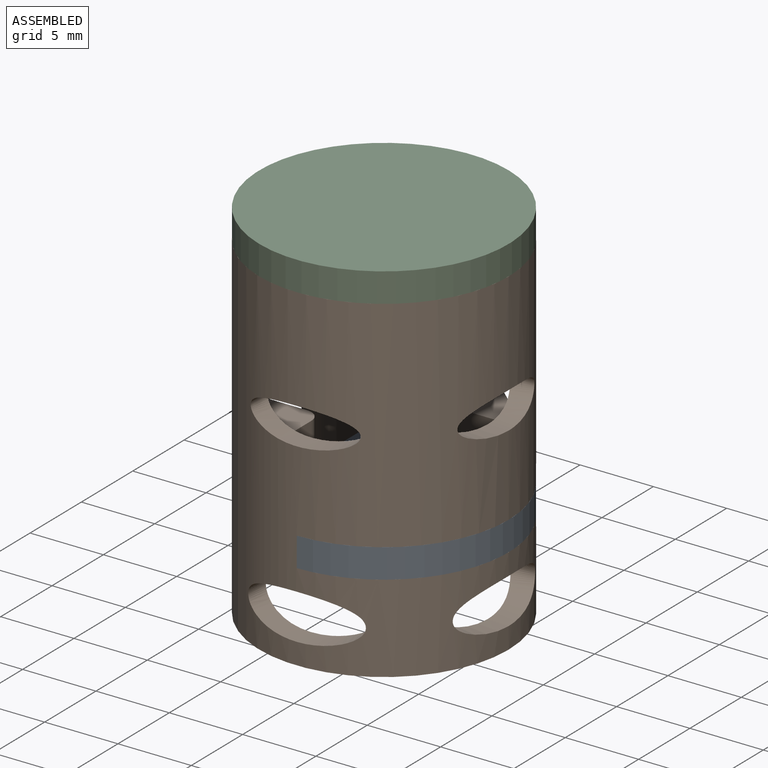
[diagram: assembled view]
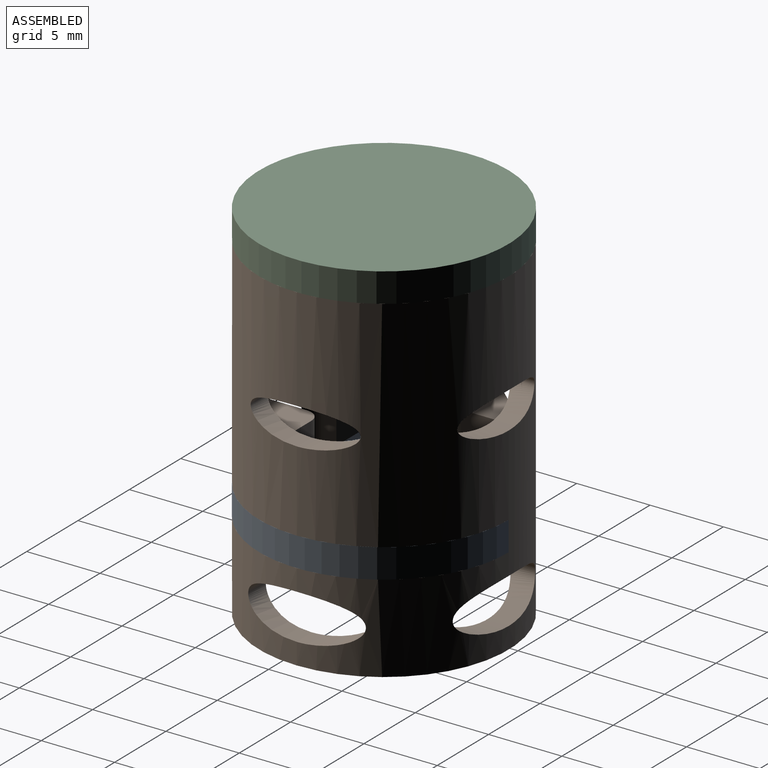
[diagram: assembled view, second angle]
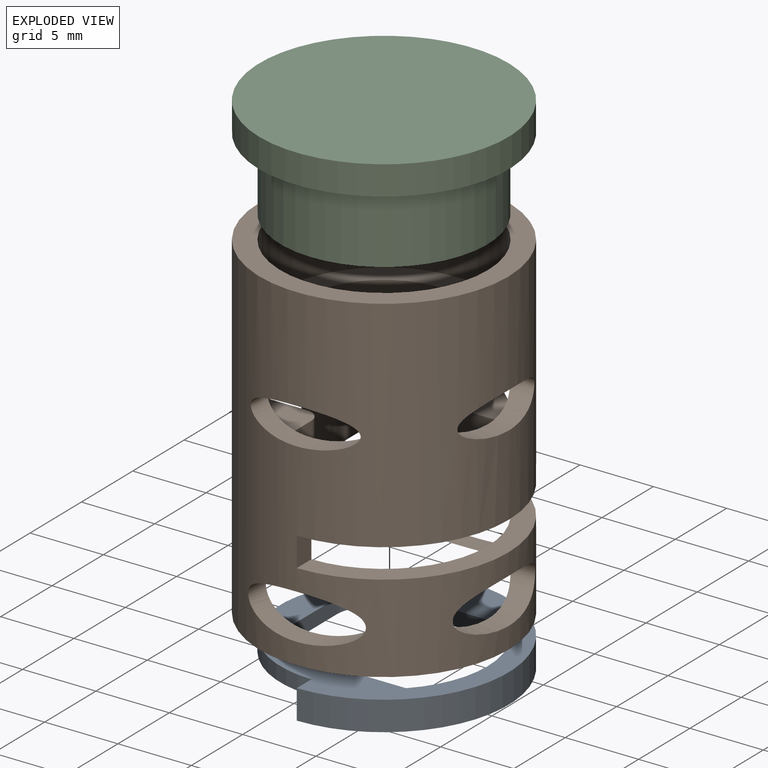
[diagram: exploded view]
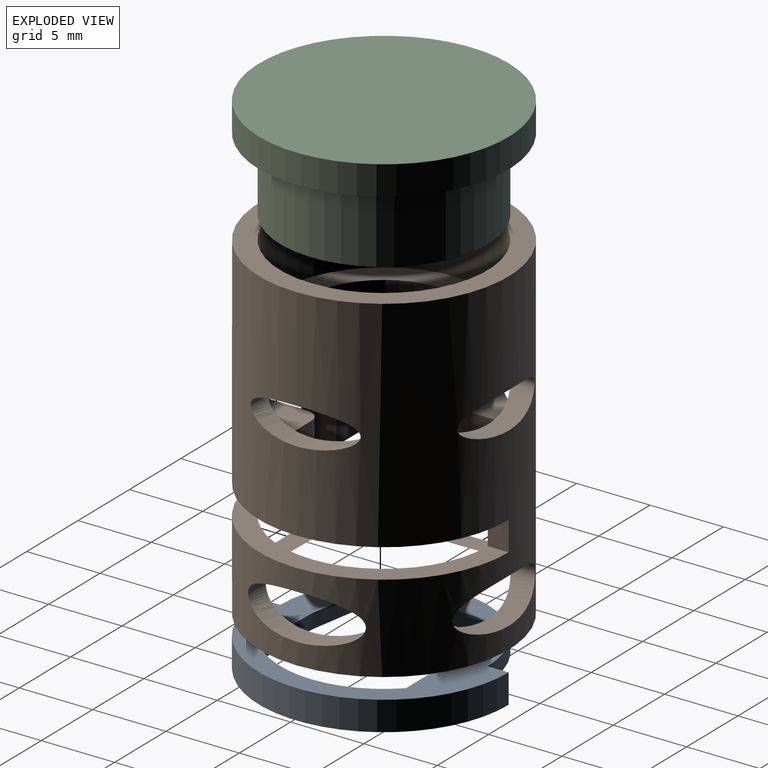
[diagram: exploded view, second angle]
ASSEMBLY  parts=3 mates=6
PART A: 17 faces, bbox 15.6x17x2 mm
  f0: plane 14.14x12.07mm, normal (0,0,1), area 47.8mm2, adj f1,f2,f3,f4,f5,f6,f10,f13
  f1: plane 5.03x1mm, normal (1,0,0), area 5mm2, adj f0,f11,f15,f16
  f2: extruded ~2.95x1mm, area 3mm2, adj f0,f11,f13,f15
  f3: plane 4.6x1mm, normal (0,-1,0), area 4.6mm2, adj f0,f4,f11,f13
  f4: cylinder r=7.07mm len=14.14mm, axis (0,0,-1), area 33.3mm2, adj f0,f3,f5,f7,f9,f11,f12
  f5: plane 4.67x1mm, normal (0,1,0), area 4.7mm2, adj f0,f4,f11,f14
  f6: cylinder r=7.07mm len=14.14mm, axis (0,0,-1), area 22.2mm2, adj f0,f7,f9,f11
  f7: plane 2x1.43mm, normal (-1,0,0), area 2.9mm2, adj f4,f6,f8,f11,f12
  f8: cylinder r=8.5mm len=17mm, axis (0,0,-1), area 53.4mm2, adj f7,f9,f11,f12
  f9: plane 2x1.43mm, normal (-1,0,0), area 2.9mm2, adj f4,f6,f8,f11,f12
  f10: extruded ~2.96x1mm, area 3mm2, adj f0,f11,f14,f16
  f11: plane 17x15.57mm, normal (0,0,-1), area 82.8mm2, adj f1,f2,f3,f4,f5,f6,f7,f8
  f12: plane 17x8.5mm, normal (0,0,1), area 35mm2, adj f4,f7,f8,f9
  f13: cylinder r=5mm len=1mm, axis (0,0,-1), area 0.8mm2, adj f0,f2,f3,f11
  f14: cylinder r=5mm len=1mm, axis (0,0,-1), area 0.7mm2, adj f0,f5,f10,f11
  f15: cylinder r=2mm len=1.97mm, axis (0,0,-1), area 2.8mm2, adj f0,f1,f2,f11
  f16: cylinder r=2mm len=1.98mm, axis (0,0,-1), area 2.9mm2, adj f0,f1,f10,f11
PART B: 60 faces, bbox 23.5x30x23 mm
  f0: cylinder r=7.07mm len=16mm, axis (0,0,-1), area 390.6mm2, adj f10,f13,f17,f20,f25,f26,f29,f30
  f1: plane 2.5x2.5mm, normal (0,0,-1), area 6mm2, adj f8,f9,f32,f33,f36
  f2: plane 2.5x2.5mm, normal (0,0,-1), area 6mm2, adj f11,f12,f27,f28,f37
  f3: plane 2.5x2.5mm, normal (0,0,-1), area 6mm2, adj f18,f19,f21,f22,f34
  f4: plane 14.14x14.14mm, normal (0,0,1), area 65.5mm2, adj f5,f58
  f5: cylinder r=7.07mm len=14.14mm, axis (0,0,-1), area 222.1mm2, adj f4,f7
  f6: cylinder r=8.5mm len=23mm, axis (0,0,-1), area 1033.2mm2, adj f7,f31,f46,f47,f48,f49,f50,f51
  f7: plane 17x17mm, normal (0,0,1), area 69.9mm2, adj f5,f6
  f8: plane 4.5x2.38mm, normal (-1,0,0), area 6.2mm2, adj f1,f10,f31,f32,f36,f42
  f9: plane 4.5x2.38mm, normal (0,-1,0), area 6.2mm2, adj f1,f10,f31,f33,f36,f43
  f10: plane 5.1x5.1mm, normal (0,0,1), area 10.9mm2, adj f0,f8,f9,f36,f42,f43
  f11: plane 4.5x2.38mm, normal (0,-1,0), area 6.2mm2, adj f2,f13,f28,f29,f37,f45
  f12: plane 4.5x2.38mm, normal (1,0,0), area 6.2mm2, adj f2,f13,f27,f30,f37,f44
  f13: plane 5.1x5.1mm, normal (0,0,1), area 10.9mm2, adj f0,f11,f12,f37,f44,f45
  f14: plane 4.5x2.38mm, normal (1,0,0), area 6.2mm2, adj f16,f17,f24,f25,f35,f39
  f15: plane 4.5x2.38mm, normal (0,1,0), area 6.2mm2, adj f16,f17,f23,f26,f35,f38
  f16: plane 2.5x2.5mm, normal (0,0,-1), area 6mm2, adj f14,f15,f23,f24,f35
  f17: plane 5.1x5.1mm, normal (0,0,1), area 10.9mm2, adj f0,f14,f15,f35,f38,f39
  f18: plane 4.5x2.38mm, normal (0,1,0), area 6.2mm2, adj f3,f20,f22,f31,f34,f41
  f19: plane 4.5x2.38mm, normal (-1,0,0), area 6.2mm2, adj f3,f20,f21,f31,f34,f40
  f20: plane 5.1x5.1mm, normal (0,0,1), area 10.9mm2, adj f0,f18,f19,f34,f40,f41
  f21: plane 3x2.5mm, normal (0,1,0), area 7.5mm2, adj f3,f19,f22,f31
  f22: plane 3x2.5mm, normal (-1,0,0), area 7.5mm2, adj f3,f18,f21,f31
  f23: plane 3x2.5mm, normal (1,0,0), area 7.5mm2, adj f15,f16,f24,f26
  f24: plane 3x2.5mm, normal (0,1,0), area 7.5mm2, adj f14,f16,f23,f25
  f25: plane 3.25x1.85mm, normal (0,0,-1), area 2.4mm2, adj f0,f14,f24,f39
  f26: plane 3.25x1.85mm, normal (0,0,-1), area 2.4mm2, adj f0,f15,f23,f38
  f27: plane 3x2.5mm, normal (0,-1,0), area 7.5mm2, adj f2,f12,f28,f30
  f28: plane 3x2.5mm, normal (1,0,0), area 7.5mm2, adj f2,f11,f27,f29
  f29: plane 3.25x1.85mm, normal (0,0,-1), area 2.4mm2, adj f0,f11,f28,f45
  f30: plane 3.25x1.85mm, normal (0,0,-1), area 2.4mm2, adj f0,f12,f27,f44
  f31: plane 17x8.5mm, normal (0,0,-1), area 44.7mm2, adj f0,f6,f8,f9,f18,f19,f21,f22
  f32: plane 3x2.5mm, normal (0,-1,0), area 7.5mm2, adj f1,f8,f31,f33
  f33: plane 3x2.5mm, normal (-1,0,0), area 7.5mm2, adj f1,f9,f31,f32
  f34: cylinder r=1mm len=1.5mm, axis (0,0,1), area 2.4mm2, adj f3,f18,f19,f20
  f35: cylinder r=1mm len=1.5mm, axis (0,0,1), area 2.4mm2, adj f14,f15,f16,f17
  f36: cylinder r=1mm len=1.5mm, axis (0,0,1), area 2.4mm2, adj f1,f8,f9,f10
  f37: cylinder r=1mm len=1.5mm, axis (0,0,1), area 2.4mm2, adj f2,f11,f12,f13
  f38: cylinder r=1mm len=4.5mm, axis (0,0,-1), area 5.9mm2, adj f0,f15,f17,f26
  f39: cylinder r=1mm len=4.5mm, axis (0,0,-1), area 5.9mm2, adj f0,f14,f17,f25
  f40: cylinder r=1mm len=4.5mm, axis (0,0,-1), area 5.9mm2, adj f0,f19,f20,f31
  f41: cylinder r=1mm len=4.5mm, axis (0,0,-1), area 5.9mm2, adj f0,f18,f20,f31
  f42: cylinder r=1mm len=4.5mm, axis (0,0,-1), area 5.9mm2, adj f0,f8,f10,f31
  f43: cylinder r=1mm len=4.5mm, axis (0,0,-1), area 5.9mm2, adj f0,f9,f10,f31
  f44: cylinder r=1mm len=4.5mm, axis (0,0,-1), area 5.9mm2, adj f0,f12,f13,f30
  f45: cylinder r=1mm len=4.5mm, axis (0,0,-1), area 5.9mm2, adj f0,f11,f13,f29
  f46: plane 2x1.43mm, normal (1,0,0), area 2.9mm2, adj f0,f6,f31,f48
  f47: plane 2x1.43mm, normal (1,0,0), area 2.9mm2, adj f0,f6,f31,f48
  f48: plane 17x8.5mm, normal (0,0,1), area 35mm2, adj f0,f6,f46,f47
  f49: plane 17x17mm, normal (0,0,-1), area 69.9mm2, adj f0,f6
  f50: bspline ~15x8.55mm, area 27.5mm2, adj f0,f6
  f51: bspline ~15x8.55mm, area 27.5mm2, adj f0,f6
  f52: bspline ~15x8.55mm, area 27.5mm2, adj f0,f6
  f53: bspline ~8.09x3.09mm, area 27.5mm2, adj f0,f6
  f54: extruded ~7.5x2.51mm, area 25.1mm2, adj f0,f6
  f55: extruded ~7.5x2.51mm, area 25.1mm2, adj f0,f6
  f56: extruded ~7.5x2.51mm, area 25.1mm2, adj f0,f6
  f57: extruded ~7.5x2.51mm, area 25.1mm2, adj f0,f6
  f58: cylinder r=5.4mm len=10.8mm, axis (0,0,1), area 67.9mm2, adj f4,f59
  f59: plane 14.14x14.14mm, normal (0,0,-1), area 65.5mm2, adj f0,f58
PART C: 7 faces, bbox 17x17x7 mm
  f0: cylinder r=8.5mm len=17mm, axis (0,0,-1), area 106.8mm2, adj f1,f2
  f1: plane 17x17mm, normal (0,0,1), area 69.9mm2, adj f0,f4
  f2: plane 17x17mm, normal (0,0,-1), area 227mm2, adj f0
  f3: cylinder r=6.07mm len=12.14mm, axis (0,0,-1), area 190.7mm2, adj f5,f6
  f4: cylinder r=7.07mm len=14.14mm, axis (0,0,-1), area 222.1mm2, adj f1,f5
  f5: plane 14.14x14.14mm, normal (0,0,1), area 41.3mm2, adj f3,f4
  f6: plane 12.14x12.14mm, normal (0,0,1), area 115.8mm2, adj f3
PLACE A rot(axis=(-1,0,0),180deg) t=(-2.59,22.26,17.6)mm
PLACE B t=(12.07,-4.18,12.6)mm fixed
PLACE C rot(axis=(-0.91,0.43,0),180deg) t=(2.8,33.67,34.6)mm
MATE planar A.f11 <-> B.f31  axis (0,0,1) through (12.94,-4.2,17.6)mm
MATE parallel A.f0 <-> B.f31  axis (0,0,-1) through (12.47,-9.18,16.6)mm
MATE planar B.f6 <-> C.f0  axis (0,0,1) through (12.07,-4.18,32.6)mm
MATE cylindrical C.f0 <-> B.f0  axis (0,0,1) through (12.07,-4.18,30.1)mm
MATE cylindrical A.f4 <-> B.f0  axis (0,0,1) through (12.07,-4.18,17.1)mm
MATE parallel A.f9 <-> B.f47  axis (-1,0,0) through (12.07,-11.97,16.6)mm
